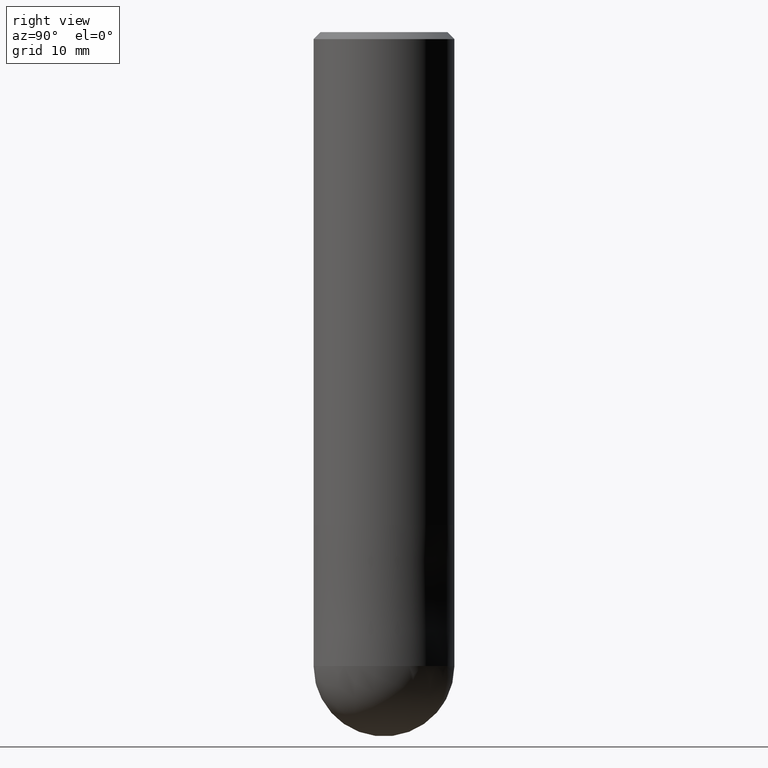
[diagram: clean part render]
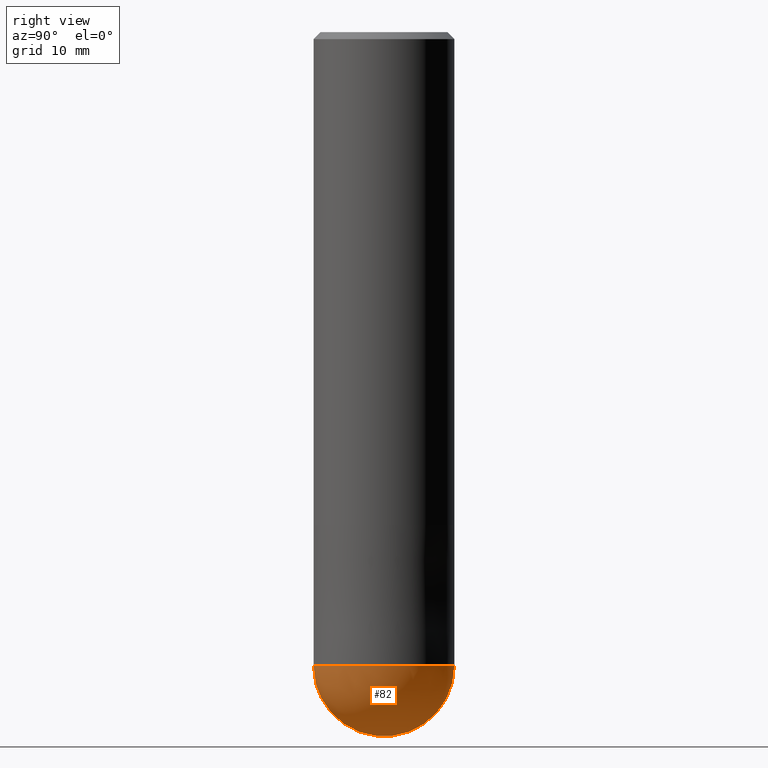
[diagram: same view with one face highlighted and labeled with its STEP entity id]
A machine part, right view. The second image highlights one B-rep face of the part: STEP entity #82.
In plain terms, the highlighted spherical surface has radius 6 mm.
Its self-contained STEP definition (entity closure, byte-faithful):
#82=ADVANCED_FACE('',(#178),#179,.T.);
#96=EDGE_CURVE('',#116,#110,#194,.T.);
#110=VERTEX_POINT('',#210);
#116=VERTEX_POINT('',#216);
#122=EDGE_CURVE('',#110,#116,#222,.T.);
#178=FACE_OUTER_BOUND('',#275,.T.);
#179=SPHERICAL_SURFACE('',#276,6.00000000000001);
#194=CIRCLE('',#293,6.00000000000001);
#210=CARTESIAN_POINT('',(0.0,6.0,-54.0));
#216=CARTESIAN_POINT('',(7.34763812293426E-016,-6.0,-54.0));
#222=CIRCLE('',#333,6.0);
#275=EDGE_LOOP('',(#387,#388));
#276=AXIS2_PLACEMENT_3D('',#389,#390,#391);
#293=AXIS2_PLACEMENT_3D('',#403,#404,#405);
#333=AXIS2_PLACEMENT_3D('',#438,#439,#440);
#387=ORIENTED_EDGE('',*,*,#96,.T.);
#388=ORIENTED_EDGE('',*,*,#122,.T.);
#389=CARTESIAN_POINT('',(0.0,0.0,-54.0));
#390=DIRECTION('',(0.0,1.0,0.0));
#391=DIRECTION('',(0.0,0.0,-1.0));
#403=CARTESIAN_POINT('',(0.0,0.0,-54.0));
#404=DIRECTION('',(1.0,0.0,1.22460635382238E-016));
#405=DIRECTION('',(-1.22460635382238E-016,0.0,1.0));
#438=CARTESIAN_POINT('',(0.0,0.0,-54.0));
#439=DIRECTION('',(0.0,0.0,-1.0));
#440=DIRECTION('',(0.0,1.0,0.0));